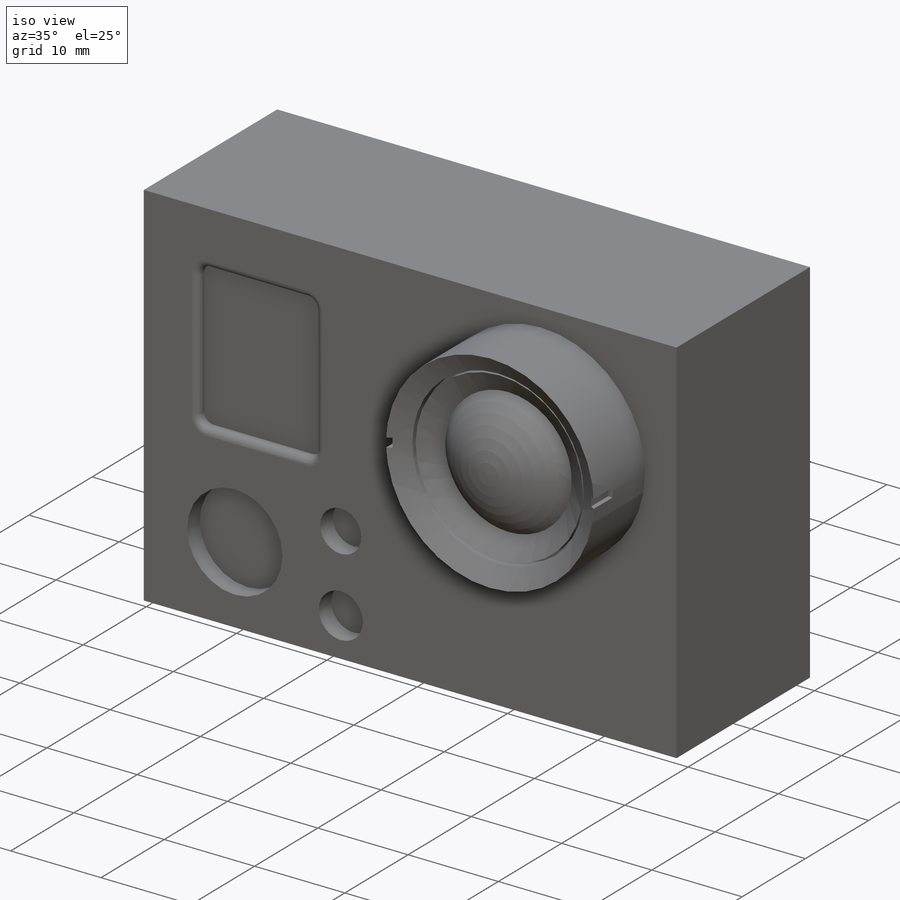
[diagram: iso view]
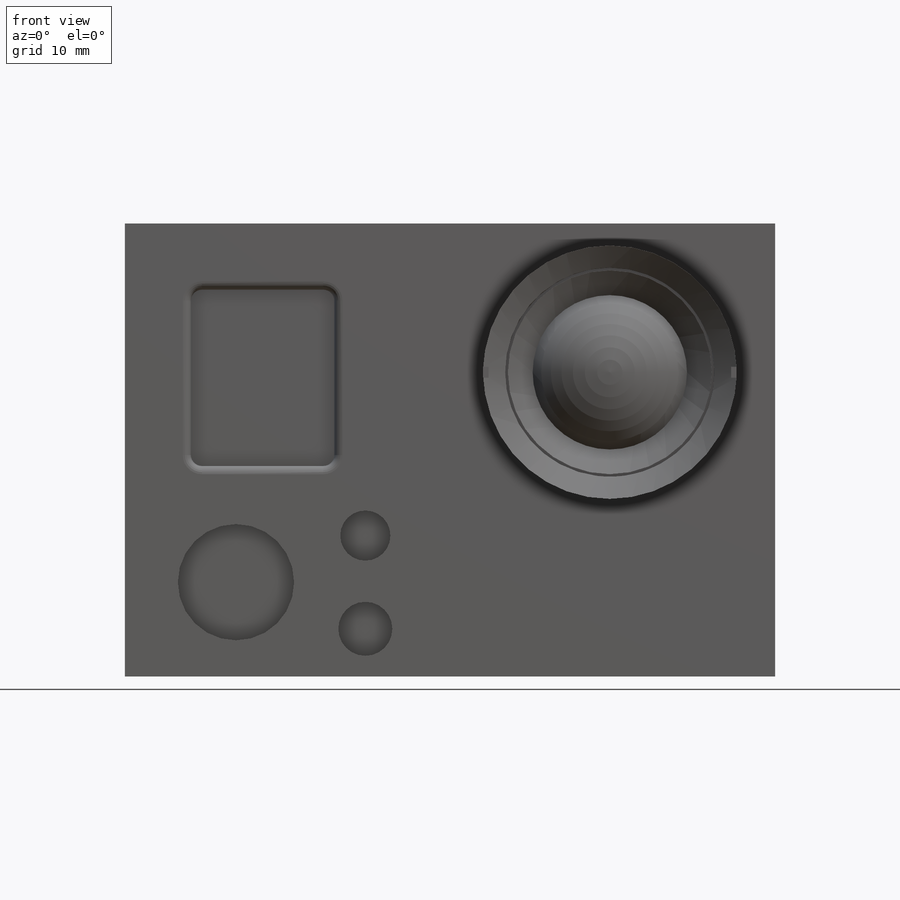
[diagram: front view]
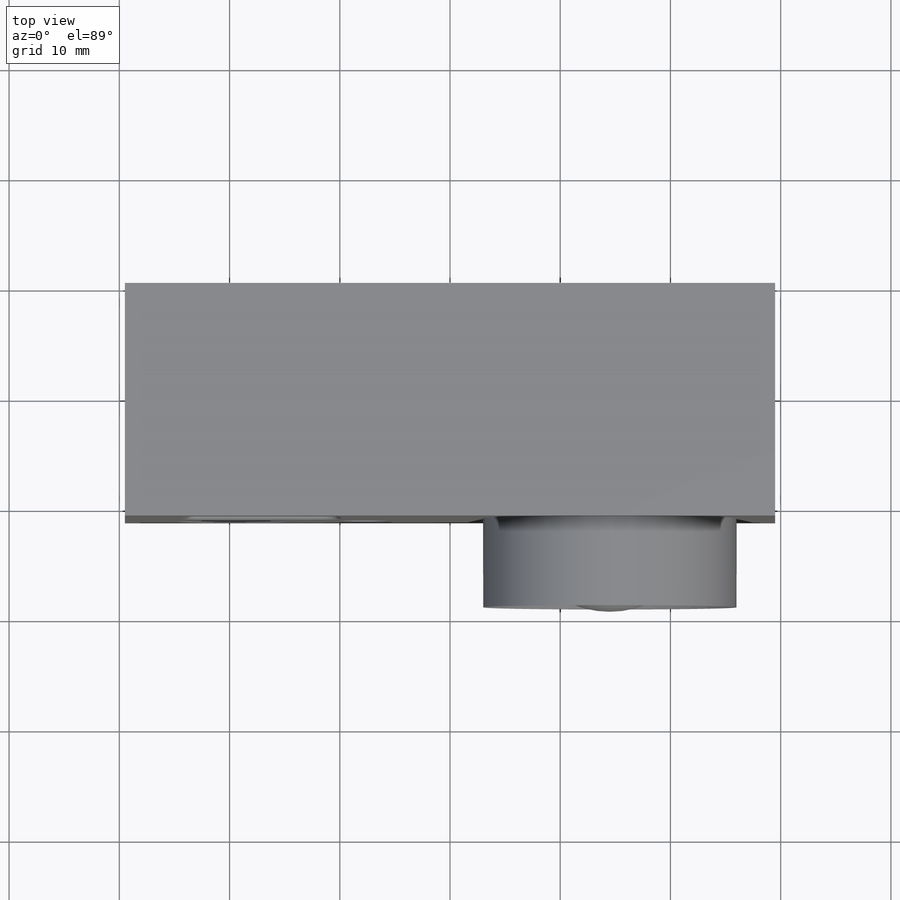
[diagram: top view]
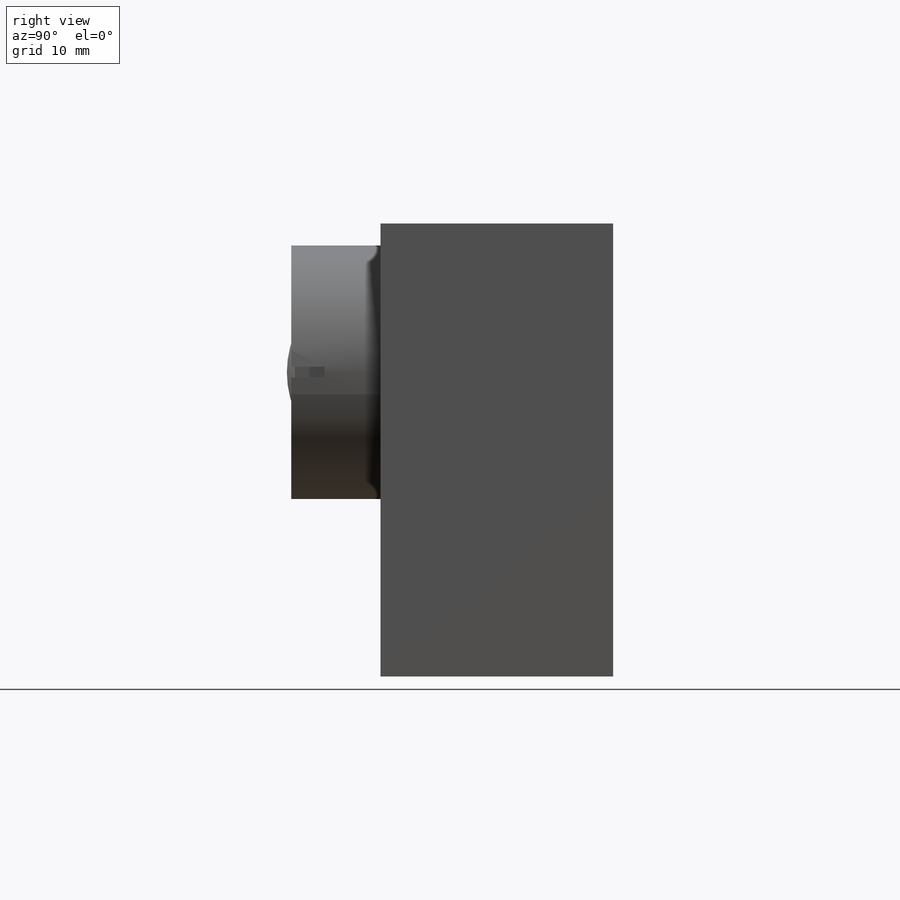
[diagram: right view]
SOLIDWORKS PART (.sldprt)
format: sldprt  version: not decoded by parser v0  size: 292,352 bytes
history: native  units: mm
features: sketch x6, cut_extrude x3, extrude x2, material x1, plane x1, revolve x1, fillet x1 (+11 scaffold rows collapsed)
feature tree (26):
  scaffold x11  (default folders/planes/origin — collapsed)
  material  "Material <not specified>"
  sketch  "Sketch1"  dims[D1=41.1mm D2=59.0mm]
  extrude  "Boss-Extrude1"  Depth=19.6mm
  sketch  "Sketch2"
  extrude  "Boss-Extrude2"  Depth=1.5mm
  plane  "Plane1"  Offset=14.5mm
  sketch  "Sketch4"  dims[D5=9.0mm D1=11.5mm D2=8.1mm D3=7.0mm D4=9.5mm D6=0.25mm D7=1.0mm D8=8.5mm D9=2.0mm]
  revolve  "lens"  Angle=360deg
  sketch  "Sketch5"  dims[D1=1.0mm D2=0.5mm]
  cut_extrude  "lens side cuts"  Depth=3mm
  sketch  "Sketch6"  dims[D5=1.0mm D1=6.0mm D2=6.0mm D3=13.0mm D4=16.0mm]
  cut_extrude  "Screen cut"  Depth=1mm
  fillet  "Fillet1"  Radius=0.75mm
  sketch  "Sketch7"
  cut_extrude  "Button cuts - Face"  Depth=2mm
decode coverage: 11 of 13 modeling features carry decoded parameters
note: suppression state not decoded; provenance and decode notes live in map.json
